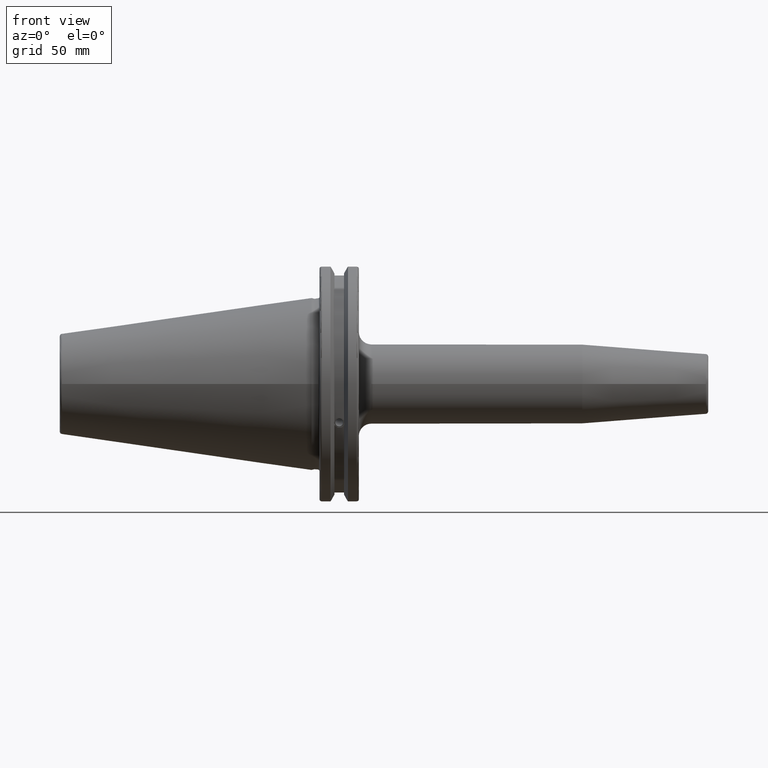
[diagram: clean part render]
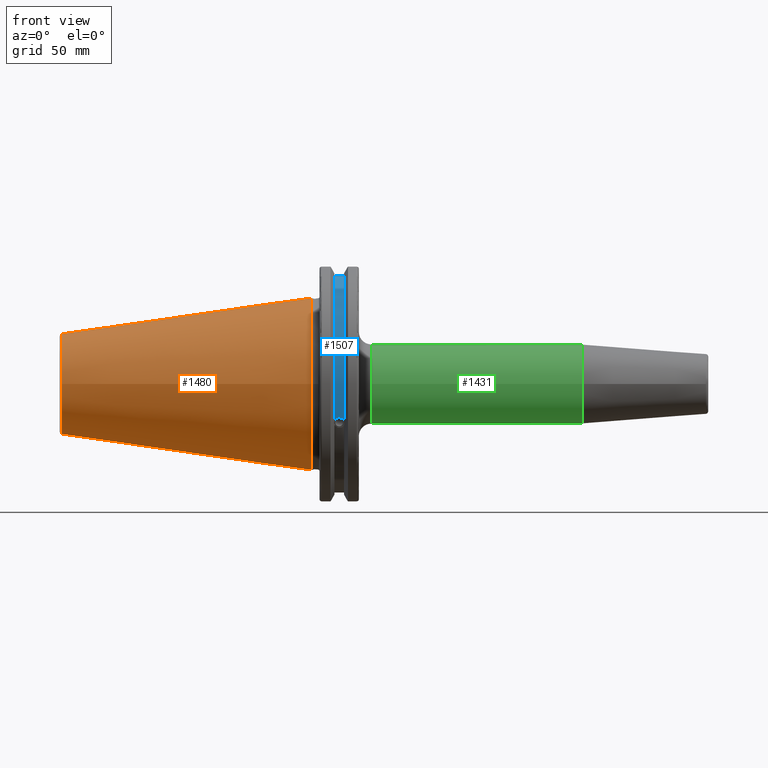
[diagram: same view with three faces highlighted in distinct colors, each labeled with its STEP entity id]
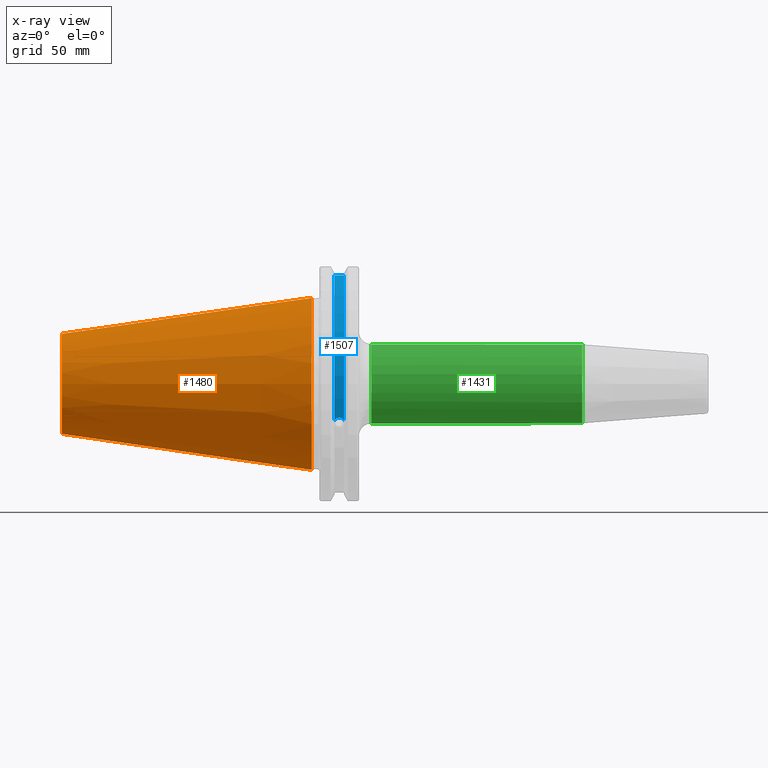
[diagram: x-ray of the same camera — body ghosted, the three highlighted faces saturated]
A machine part, front view with three faces highlighted in distinct colors.
The next image is the same camera in x-ray (body ghosted, the three faces saturated) — at least one of them is partly hidden behind the body in this view.
Their STEP definitions:

[orange] entity #1480 — the highlighted conical surface has half-angle 8.297 deg.
#77=CONICAL_SURFACE('',#1651,27.5166666666666,0.14481249823894);
#153=LINE('',#2954,#243);
#243=VECTOR('',#2006,27.5166666666666);
#401=FACE_OUTER_BOUND('',#503,.T.);
#503=EDGE_LOOP('',(#1284,#1285,#1286,#1287,#1288));
#591=CIRCLE('',#1645,20.233121911427);
#592=CIRCLE('',#1646,20.233121911427);
#596=CIRCLE('',#1652,34.925);
#741=VERTEX_POINT('',#2941);
#742=VERTEX_POINT('',#2942);
#745=VERTEX_POINT('',#2952);
#937=EDGE_CURVE('',#741,#742,#591,.T.);
#938=EDGE_CURVE('',#742,#741,#592,.T.);
#942=EDGE_CURVE('',#745,#745,#596,.T.);
#943=EDGE_CURVE('',#745,#742,#153,.T.);
#1284=ORIENTED_EDGE('',*,*,#942,.F.);
#1285=ORIENTED_EDGE('',*,*,#943,.T.);
#1286=ORIENTED_EDGE('',*,*,#937,.F.);
#1287=ORIENTED_EDGE('',*,*,#938,.F.);
#1288=ORIENTED_EDGE('',*,*,#943,.F.);
#1480=ADVANCED_FACE('',(#401),#77,.T.);
#1645=AXIS2_PLACEMENT_3D('',#2943,#1990,#1991);
#1646=AXIS2_PLACEMENT_3D('',#2944,#1992,#1993);
#1651=AXIS2_PLACEMENT_3D('',#2951,#2002,#2003);
#1652=AXIS2_PLACEMENT_3D('',#2953,#2004,#2005);
#1990=DIRECTION('center_axis',(-1.,0.,0.));
#1991=DIRECTION('ref_axis',(0.,-1.,3.06161699786838E-17));
#1992=DIRECTION('center_axis',(-1.,0.,0.));
#1993=DIRECTION('ref_axis',(0.,-1.,3.06161699786838E-17));
#2002=DIRECTION('center_axis',(1.,0.,0.));
#2003=DIRECTION('ref_axis',(0.,1.,0.));
#2004=DIRECTION('center_axis',(1.,0.,0.));
#2005=DIRECTION('ref_axis',(0.,0.,-1.));
#2006=DIRECTION('',(-0.989532981063281,0.144306893071729,1.76724974695192E-17));
#2941=CARTESIAN_POINT('',(-100.744306893072,-2.47784279855872E-15,20.233121911427));
#2942=CARTESIAN_POINT('',(-100.744306893072,-20.233121911427,-2.47784279855872E-15));
#2943=CARTESIAN_POINT('Origin',(-100.744306893072,0.,-3.09730349819841E-15));
#2944=CARTESIAN_POINT('Origin',(-100.744306893072,0.,-3.09730349819841E-15));
#2951=CARTESIAN_POINT('Origin',(-50.8,0.,0.));
#2952=CARTESIAN_POINT('',(-8.88178419700125E-15,-34.925,-4.27707894602213E-15));
#2953=CARTESIAN_POINT('Origin',(0.,0.,0.));
#2954=CARTESIAN_POINT('',(-50.8,-27.5166666666666,-3.3698197756538E-15));

[blue] entity #1507 — the highlighted cylindrical surface (partial cylindrical patch) has radius 45.6435 mm, axis along (1, 0, 0).
#42=B_SPLINE_CURVE_WITH_KNOTS('',3,(#2380,#2381,#2382,#2383,#2384,#2385,
#2386,#2387,#2388,#2389,#2390,#2391,#2392,#2393),.UNSPECIFIED.,.F.,.F.,
(4,2,2,2,2,2,4),(0.40154831257669,0.474697095495631,0.553813286063443,0.632929476631254,
0.712045667199066,0.791161857766877,0.864310640685818),.UNSPECIFIED.);
#144=LINE('',#2859,#234);
#234=VECTOR('',#1959,10.);
#288=CYLINDRICAL_SURFACE('',#1689,45.6435);
#428=FACE_OUTER_BOUND('',#532,.T.);
#532=EDGE_LOOP('',(#1408,#1409,#1410,#1411));
#606=CIRCLE('',#1688,45.6435);
#607=CIRCLE('',#1690,45.6435);
#650=VERTEX_POINT('',#2377);
#651=VERTEX_POINT('',#2379);
#730=VERTEX_POINT('',#2856);
#731=VERTEX_POINT('',#2858);
#811=EDGE_CURVE('',#651,#650,#42,.T.);
#916=EDGE_CURVE('',#731,#730,#144,.T.);
#974=EDGE_CURVE('',#730,#651,#606,.T.);
#975=EDGE_CURVE('',#731,#650,#607,.T.);
#1408=ORIENTED_EDGE('',*,*,#811,.T.);
#1409=ORIENTED_EDGE('',*,*,#975,.F.);
#1410=ORIENTED_EDGE('',*,*,#916,.T.);
#1411=ORIENTED_EDGE('',*,*,#974,.T.);
#1507=ADVANCED_FACE('',(#428),#288,.T.);
#1688=AXIS2_PLACEMENT_3D('',#3025,#2096,#2097);
#1689=AXIS2_PLACEMENT_3D('',#3026,#2098,#2099);
#1690=AXIS2_PLACEMENT_3D('',#3027,#2100,#2101);
#1959=DIRECTION('',(-1.,0.,0.));
#2096=DIRECTION('center_axis',(1.,0.,0.));
#2097=DIRECTION('ref_axis',(0.,0.,-1.));
#2098=DIRECTION('center_axis',(1.,0.,0.));
#2099=DIRECTION('ref_axis',(0.,-0.888619069115281,0.458645996390125));
#2100=DIRECTION('center_axis',(1.,0.,0.));
#2101=DIRECTION('ref_axis',(0.,0.,-1.));
#2377=CARTESIAN_POINT('',(13.0491,-43.1779814500336,-14.7983448449669));
#2379=CARTESIAN_POINT('',(9.2191,-43.1779814500336,-14.7983448449669));
#2380=CARTESIAN_POINT('Ctrl Pts',(9.2191,-43.1779814500335,-14.7983448449669));
#2381=CARTESIAN_POINT('Ctrl Pts',(9.32532177598176,-43.2545173750974,-14.5750315766731));
#2382=CARTESIAN_POINT('Ctrl Pts',(9.47680807557665,-43.3223492818373,-14.3712521044637));
#2383=CARTESIAN_POINT('Ctrl Pts',(9.83560503400179,-43.4340904392251,-14.0300988117073));
#2384=CARTESIAN_POINT('Ctrl Pts',(10.0717203280543,-43.4832903960863,-13.8760243976176));
#2385=CARTESIAN_POINT('Ctrl Pts',(10.5891059167872,-43.54802519266,-13.6715068146718));
#2386=CARTESIAN_POINT('Ctrl Pts',(10.870379364774,-43.5636826100883,-13.6211104428929));
#2387=CARTESIAN_POINT('Ctrl Pts',(11.397820635226,-43.5636826100883,-13.6211104428929));
#2388=CARTESIAN_POINT('Ctrl Pts',(11.6790940832128,-43.54802519266,-13.6715068146718));
#2389=CARTESIAN_POINT('Ctrl Pts',(12.1964796719457,-43.4832903960863,-13.8760243976176));
#2390=CARTESIAN_POINT('Ctrl Pts',(12.4325949659982,-43.4340904392251,-14.0300988117073));
#2391=CARTESIAN_POINT('Ctrl Pts',(12.7913919244233,-43.3223492818373,-14.3712521044637));
#2392=CARTESIAN_POINT('Ctrl Pts',(12.9428782240182,-43.2545173750974,-14.5750315766731));
#2393=CARTESIAN_POINT('Ctrl Pts',(13.0491,-43.1779814500335,-14.7983448449669));
#2856=CARTESIAN_POINT('',(9.2191,-12.95,43.7678716897452));
#2858=CARTESIAN_POINT('',(13.0491,-12.95,43.7678716897452));
#2859=CARTESIAN_POINT('',(11.1341,-12.95,43.7678716897452));
#3025=CARTESIAN_POINT('Origin',(9.2191,0.,0.));
#3026=CARTESIAN_POINT('Origin',(11.1341,0.,0.));
#3027=CARTESIAN_POINT('Origin',(13.0491,0.,0.));

[green] entity #1431 — the highlighted cylindrical surface (bore or boss wall) has radius 16 mm, axis along (1, 0, 0).
#85=LINE('',#2139,#175);
#175=VECTOR('',#1738,16.);
#264=CYLINDRICAL_SURFACE('',#1552,16.);
#352=FACE_OUTER_BOUND('',#437,.T.);
#437=EDGE_LOOP('',(#1003,#1004,#1005,#1006,#1007));
#543=CIRCLE('',#1546,16.);
#544=CIRCLE('',#1548,16.);
#547=CIRCLE('',#1551,16.);
#615=VERTEX_POINT('',#2127);
#616=VERTEX_POINT('',#2131);
#617=VERTEX_POINT('',#2132);
#767=EDGE_CURVE('',#615,#615,#543,.T.);
#768=EDGE_CURVE('',#616,#617,#544,.T.);
#771=EDGE_CURVE('',#617,#616,#547,.T.);
#772=EDGE_CURVE('',#615,#616,#85,.T.);
#1003=ORIENTED_EDGE('',*,*,#767,.F.);
#1004=ORIENTED_EDGE('',*,*,#772,.T.);
#1005=ORIENTED_EDGE('',*,*,#771,.F.);
#1006=ORIENTED_EDGE('',*,*,#768,.F.);
#1007=ORIENTED_EDGE('',*,*,#772,.F.);
#1431=ADVANCED_FACE('',(#352),#264,.T.);
#1546=AXIS2_PLACEMENT_3D('',#2129,#1724,#1725);
#1548=AXIS2_PLACEMENT_3D('',#2133,#1728,#1729);
#1551=AXIS2_PLACEMENT_3D('',#2137,#1734,#1735);
#1552=AXIS2_PLACEMENT_3D('',#2138,#1736,#1737);
#1724=DIRECTION('center_axis',(1.,0.,0.));
#1725=DIRECTION('ref_axis',(0.,0.,-1.));
#1728=DIRECTION('center_axis',(-1.,0.,0.));
#1729=DIRECTION('ref_axis',(0.,-1.,-1.22464679914735E-16));
#1734=DIRECTION('center_axis',(-1.,0.,0.));
#1735=DIRECTION('ref_axis',(0.,-1.,-1.22464679914735E-16));
#1736=DIRECTION('center_axis',(1.,0.,0.));
#1737=DIRECTION('ref_axis',(0.,1.,0.));
#1738=DIRECTION('',(-1.,0.,0.));
#2127=CARTESIAN_POINT('',(109.175181055301,-16.,-1.95943487863577E-15));
#2129=CARTESIAN_POINT('Origin',(109.175181055301,0.,0.));
#2131=CARTESIAN_POINT('',(24.05,-16.,-1.95943487863577E-15));
#2132=CARTESIAN_POINT('',(24.05,-1.95943487863577E-15,-16.));
#2133=CARTESIAN_POINT('Origin',(24.05,0.,0.));
#2137=CARTESIAN_POINT('Origin',(24.05,0.,0.));
#2138=CARTESIAN_POINT('Origin',(64.1125905276504,0.,0.));
#2139=CARTESIAN_POINT('',(64.1125905276504,-16.,-1.95943487863577E-15));